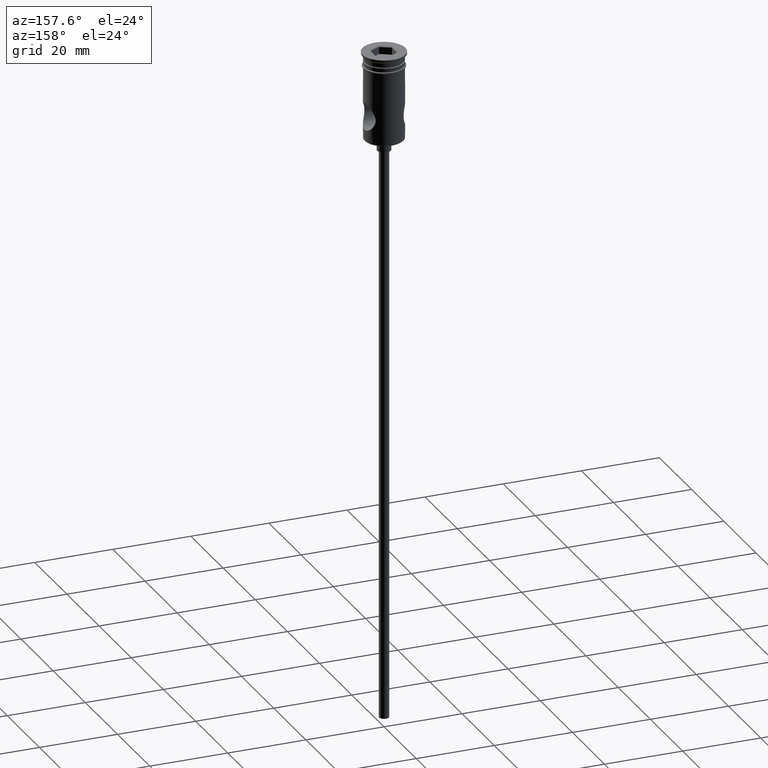
[diagram: clean part render]
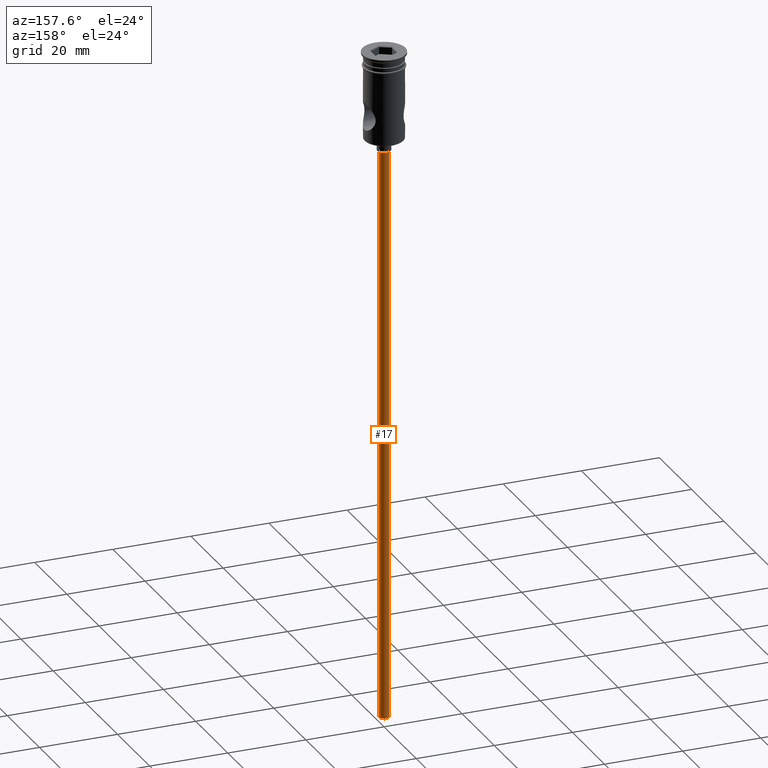
[diagram: same view with one face highlighted and labeled with its STEP entity id]
A machine part, auxiliary view. The second image highlights one B-rep face of the part: STEP entity #17.
In plain terms, the highlighted cylindrical surface (edge-blend (fillet) strip) has radius 1.25 mm, axis along (-0, -0, 1).
Its self-contained STEP definition (entity closure, byte-faithful):
#17 = ADVANCED_FACE ( 'NONE', ( #735 ), #961, .T. ) ;
#38 = EDGE_CURVE ( 'NONE', #283, #1068, #1240, .T. ) ;
#63 = ORIENTED_EDGE ( 'NONE', *, *, #225, .T. ) ;
#73 = CIRCLE ( 'NONE', #669, 1.250000000000000000 ) ;
#112 = CARTESIAN_POINT ( 'NONE',  ( -1.250000000000000000, 1.530808498934191571E-16, -172.5000000000000000 ) ) ;
#164 = CARTESIAN_POINT ( 'NONE',  ( -1.250000000000000000, 1.530808498934191571E-16, -25.50000000000000000 ) ) ;
#173 = VERTEX_POINT ( 'NONE', #164 ) ;
#183 = EDGE_LOOP ( 'NONE', ( #1388, #63, #709, #1083 ) ) ;
#225 = EDGE_CURVE ( 'NONE', #1215, #173, #344, .T. ) ;
#245 = CARTESIAN_POINT ( 'NONE',  ( 1.250000000000000000, 0.000000000000000000, -172.5000000000000000 ) ) ;
#256 = DIRECTION ( 'NONE',  ( -0.000000000000000000, -0.000000000000000000, 1.000000000000000000 ) ) ;
#283 = VERTEX_POINT ( 'NONE', #1432 ) ;
#315 = DIRECTION ( 'NONE',  ( 0.000000000000000000, 0.000000000000000000, -1.000000000000000000 ) ) ;
#344 = LINE ( 'NONE', #471, #1019 ) ;
#378 = VECTOR ( 'NONE', #1097, 1000.000000000000000 ) ;
#471 = CARTESIAN_POINT ( 'NONE',  ( -1.250000000000000000, 1.530808498934191571E-16, -172.5000000000000000 ) ) ;
#630 = DIRECTION ( 'NONE',  ( 1.000000000000000000, 0.000000000000000000, 0.000000000000000000 ) ) ;
#669 = AXIS2_PLACEMENT_3D ( 'NONE', #902, #912, #1132 ) ;
#683 = EDGE_CURVE ( 'NONE', #1215, #283, #73, .T. ) ;
#709 = ORIENTED_EDGE ( 'NONE', *, *, #1075, .T. ) ;
#735 = FACE_OUTER_BOUND ( 'NONE', #183, .T. ) ;
#741 = DIRECTION ( 'NONE',  ( -0.000000000000000000, -0.000000000000000000, 1.000000000000000000 ) ) ;
#754 = CARTESIAN_POINT ( 'NONE',  ( 0.000000000000000000, 0.000000000000000000, -25.50000000000000000 ) ) ;
#902 = CARTESIAN_POINT ( 'NONE',  ( 0.000000000000000000, 0.000000000000000000, -172.5000000000000000 ) ) ;
#912 = DIRECTION ( 'NONE',  ( 0.000000000000000000, 0.000000000000000000, -1.000000000000000000 ) ) ;
#933 = CIRCLE ( 'NONE', #1176, 1.250000000000000000 ) ;
#961 = CYLINDRICAL_SURFACE ( 'NONE', #984, 1.250000000000000000 ) ;
#984 = AXIS2_PLACEMENT_3D ( 'NONE', #1407, #741, #630 ) ;
#1019 = VECTOR ( 'NONE', #256, 1000.000000000000000 ) ;
#1068 = VERTEX_POINT ( 'NONE', #1305 ) ;
#1075 = EDGE_CURVE ( 'NONE', #173, #1068, #933, .T. ) ;
#1083 = ORIENTED_EDGE ( 'NONE', *, *, #38, .F. ) ;
#1095 = DIRECTION ( 'NONE',  ( -1.000000000000000000, 0.000000000000000000, 0.000000000000000000 ) ) ;
#1097 = DIRECTION ( 'NONE',  ( -0.000000000000000000, -0.000000000000000000, 1.000000000000000000 ) ) ;
#1132 = DIRECTION ( 'NONE',  ( -1.000000000000000000, 0.000000000000000000, 0.000000000000000000 ) ) ;
#1176 = AXIS2_PLACEMENT_3D ( 'NONE', #754, #315, #1095 ) ;
#1215 = VERTEX_POINT ( 'NONE', #112 ) ;
#1240 = LINE ( 'NONE', #245, #378 ) ;
#1305 = CARTESIAN_POINT ( 'NONE',  ( 1.250000000000000000, 0.000000000000000000, -25.50000000000000000 ) ) ;
#1388 = ORIENTED_EDGE ( 'NONE', *, *, #683, .F. ) ;
#1407 = CARTESIAN_POINT ( 'NONE',  ( 0.000000000000000000, 0.000000000000000000, -172.5000000000000000 ) ) ;
#1432 = CARTESIAN_POINT ( 'NONE',  ( 1.250000000000000000, 0.000000000000000000, -172.5000000000000000 ) ) ;